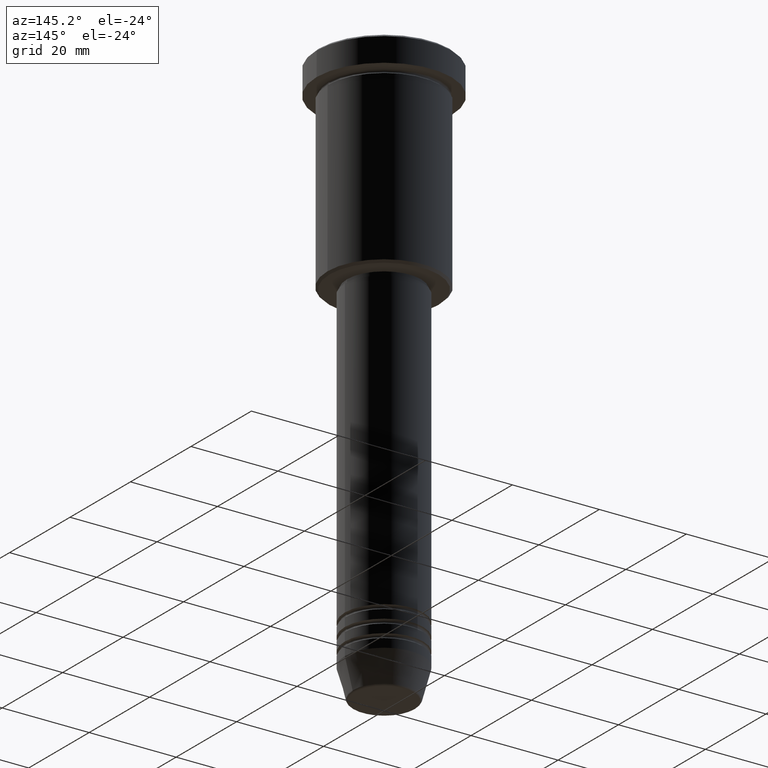
[diagram: clean part render]
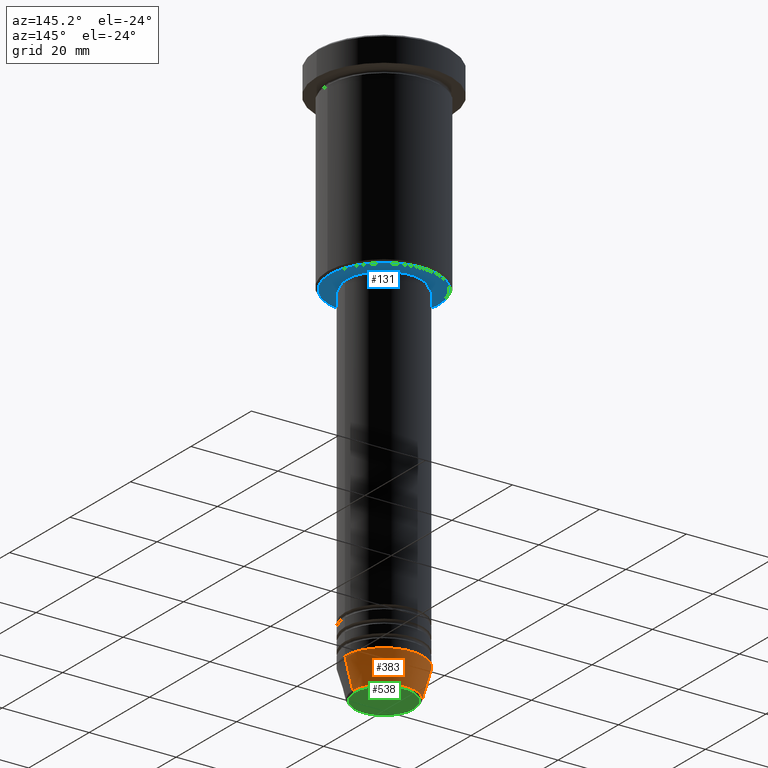
[diagram: same view with three faces highlighted in distinct colors, each labeled with its STEP entity id]
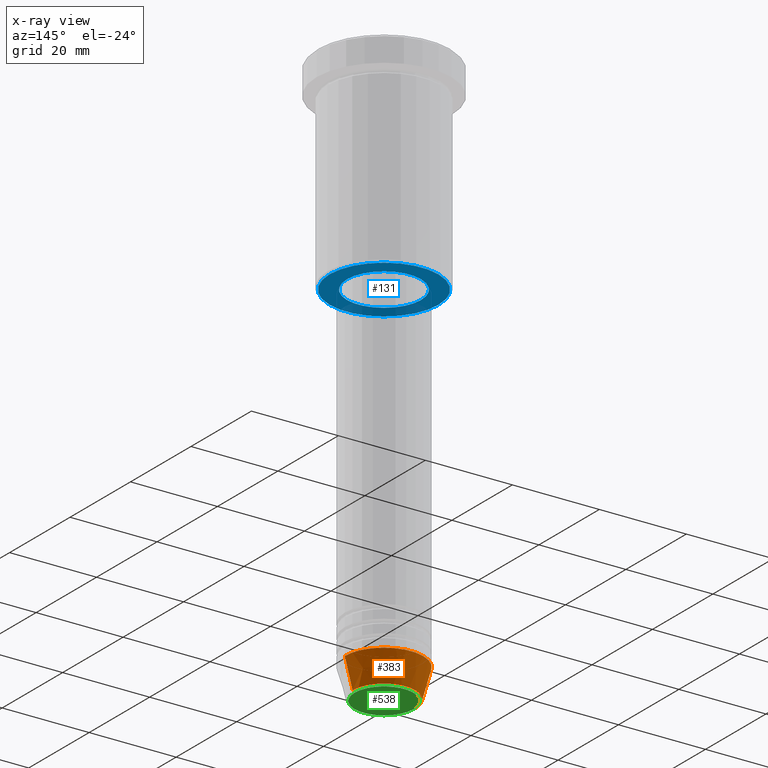
[diagram: x-ray of the same camera — body ghosted, the three highlighted faces saturated]
A machine part, auxiliary view with three faces highlighted in distinct colors.
The next image is the same camera in x-ray (body ghosted, the three faces saturated) — at least one of them is partly hidden behind the body in this view.
Their STEP definitions:

[orange] entity #383 — the highlighted conical surface has half-angle 15 deg.
#5 = CARTESIAN_POINT ( 'NONE',  ( 0.000000000000000000, 0.000000000000000000, -124.0000000000000000 ) ) ;
#12 = AXIS2_PLACEMENT_3D ( 'NONE', #462, #376, #385 ) ;
#13 = DIRECTION ( 'NONE',  ( -0.000000000000000000, -0.000000000000000000, 1.000000000000000000 ) ) ;
#44 = EDGE_CURVE ( 'NONE', #1053, #357, #639, .T. ) ;
#49 = VECTOR ( 'NONE', #1179, 1000.000000000000000 ) ;
#201 = DIRECTION ( 'NONE',  ( 1.000000000000000000, 0.000000000000000000, 0.000000000000000000 ) ) ;
#221 = AXIS2_PLACEMENT_3D ( 'NONE', #5, #574, #201 ) ;
#230 = ORIENTED_EDGE ( 'NONE', *, *, #444, .T. ) ;
#293 = ORIENTED_EDGE ( 'NONE', *, *, #44, .F. ) ;
#297 = CARTESIAN_POINT ( 'NONE',  ( 0.000000000000000000, 0.000000000000000000, -124.0000000000000000 ) ) ;
#332 = EDGE_CURVE ( 'NONE', #856, #1042, #445, .T. ) ;
#357 = VERTEX_POINT ( 'NONE', #390 ) ;
#368 = EDGE_LOOP ( 'NONE', ( #230, #789, #728, #293 ) ) ;
#376 = DIRECTION ( 'NONE',  ( -0.000000000000000000, -0.000000000000000000, 1.000000000000000000 ) ) ;
#383 = ADVANCED_FACE ( 'NONE', ( #476 ), #427, .T. ) ;
#385 = DIRECTION ( 'NONE',  ( 1.000000000000000000, 0.000000000000000000, 0.000000000000000000 ) ) ;
#389 = EDGE_CURVE ( 'NONE', #357, #1042, #1052, .T. ) ;
#390 = CARTESIAN_POINT ( 'NONE',  ( 9.000000000000000000, 0.000000000000000000, -124.0000000000000000 ) ) ;
#427 = CONICAL_SURFACE ( 'NONE', #221, 9.000000000000000000, 0.2617993877991500740 ) ;
#444 = EDGE_CURVE ( 'NONE', #1053, #856, #1097, .T. ) ;
#445 = LINE ( 'NONE', #814, #949 ) ;
#447 = CARTESIAN_POINT ( 'NONE',  ( 9.000000000000000000, 0.000000000000000000, -124.0000000000000000 ) ) ;
#462 = CARTESIAN_POINT ( 'NONE',  ( 0.000000000000000000, 0.000000000000000000, -130.6294095225512706 ) ) ;
#471 = DIRECTION ( 'NONE',  ( -0.2588190451025213501, 3.169619151431772337E-17, 0.9659258262890680902 ) ) ;
#476 = FACE_OUTER_BOUND ( 'NONE', #368, .T. ) ;
#481 = DIRECTION ( 'NONE',  ( 1.000000000000000000, 0.000000000000000000, 0.000000000000000000 ) ) ;
#489 = CARTESIAN_POINT ( 'NONE',  ( -9.000000000000000000, 1.102182119232617714E-15, -124.0000000000000000 ) ) ;
#574 = DIRECTION ( 'NONE',  ( -0.000000000000000000, -0.000000000000000000, 1.000000000000000000 ) ) ;
#639 = LINE ( 'NONE', #447, #49 ) ;
#728 = ORIENTED_EDGE ( 'NONE', *, *, #389, .F. ) ;
#754 = CARTESIAN_POINT ( 'NONE',  ( -7.223655072137189492, 9.934123627281765110E-16, -130.6294095225512706 ) ) ;
#789 = ORIENTED_EDGE ( 'NONE', *, *, #332, .T. ) ;
#814 = CARTESIAN_POINT ( 'NONE',  ( -9.000000000000000000, 1.102182119232617714E-15, -124.0000000000000000 ) ) ;
#856 = VERTEX_POINT ( 'NONE', #754 ) ;
#866 = CARTESIAN_POINT ( 'NONE',  ( 7.223655072137188604, 0.000000000000000000, -130.6294095225512706 ) ) ;
#949 = VECTOR ( 'NONE', #471, 1000.000000000000000 ) ;
#1042 = VERTEX_POINT ( 'NONE', #489 ) ;
#1052 = CIRCLE ( 'NONE', #1133, 9.000000000000000000 ) ;
#1053 = VERTEX_POINT ( 'NONE', #866 ) ;
#1097 = CIRCLE ( 'NONE', #12, 7.223655072137188604 ) ;
#1133 = AXIS2_PLACEMENT_3D ( 'NONE', #297, #13, #481 ) ;
#1179 = DIRECTION ( 'NONE',  ( 0.2588190451025213501, 0.000000000000000000, 0.9659258262890680902 ) ) ;

[blue] entity #131 — the highlighted planar face has unit normal (0, 0, -1).
#20 = ORIENTED_EDGE ( 'NONE', *, *, #498, .T. ) ;
#27 = VERTEX_POINT ( 'NONE', #921 ) ;
#54 = FACE_OUTER_BOUND ( 'NONE', #202, .T. ) ;
#56 = DIRECTION ( 'NONE',  ( 1.000000000000000000, 0.000000000000000000, 0.000000000000000000 ) ) ;
#130 = CIRCLE ( 'NONE', #322, 12.49999999999998401 ) ;
#131 = ADVANCED_FACE ( 'NONE', ( #54, #336 ), #938, .T. ) ;
#142 = CIRCLE ( 'NONE', #890, 8.499999999999998224 ) ;
#146 = CARTESIAN_POINT ( 'NONE',  ( 0.000000000000000000, 0.000000000000000000, -45.99999999999998579 ) ) ;
#151 = ORIENTED_EDGE ( 'NONE', *, *, #1041, .T. ) ;
#202 = EDGE_LOOP ( 'NONE', ( #151, #815 ) ) ;
#215 = DIRECTION ( 'NONE',  ( 0.000000000000000000, 0.000000000000000000, -1.000000000000000000 ) ) ;
#242 = VERTEX_POINT ( 'NONE', #255 ) ;
#255 = CARTESIAN_POINT ( 'NONE',  ( 12.49999999999998401, 0.000000000000000000, -45.99999999999998579 ) ) ;
#322 = AXIS2_PLACEMENT_3D ( 'NONE', #620, #912, #451 ) ;
#329 = DIRECTION ( 'NONE',  ( -1.000000000000000000, 0.000000000000000000, 0.000000000000000000 ) ) ;
#336 = FACE_BOUND ( 'NONE', #879, .T. ) ;
#398 = CARTESIAN_POINT ( 'NONE',  ( 8.499999999999998224, 0.000000000000000000, -45.99999999999998579 ) ) ;
#428 = DIRECTION ( 'NONE',  ( -1.000000000000000000, 0.000000000000000000, -0.000000000000000000 ) ) ;
#451 = DIRECTION ( 'NONE',  ( -1.000000000000000000, 0.000000000000000000, 0.000000000000000000 ) ) ;
#480 = CARTESIAN_POINT ( 'NONE',  ( 0.000000000000000000, 0.000000000000000000, -45.99999999999998579 ) ) ;
#498 = EDGE_CURVE ( 'NONE', #831, #676, #142, .T. ) ;
#620 = CARTESIAN_POINT ( 'NONE',  ( 0.000000000000000000, 0.000000000000000000, -45.99999999999998579 ) ) ;
#624 = CIRCLE ( 'NONE', #1038, 8.499999999999998224 ) ;
#676 = VERTEX_POINT ( 'NONE', #806 ) ;
#685 = CIRCLE ( 'NONE', #778, 12.49999999999998401 ) ;
#689 = DIRECTION ( 'NONE',  ( 0.000000000000000000, 0.000000000000000000, -1.000000000000000000 ) ) ;
#769 = CARTESIAN_POINT ( 'NONE',  ( 0.000000000000000000, 0.000000000000000000, -45.99999999999998579 ) ) ;
#778 = AXIS2_PLACEMENT_3D ( 'NONE', #146, #689, #329 ) ;
#784 = EDGE_CURVE ( 'NONE', #27, #242, #130, .T. ) ;
#806 = CARTESIAN_POINT ( 'NONE',  ( -8.499999999999998224, 1.040949779275249943E-15, -45.99999999999998579 ) ) ;
#815 = ORIENTED_EDGE ( 'NONE', *, *, #784, .T. ) ;
#831 = VERTEX_POINT ( 'NONE', #398 ) ;
#847 = DIRECTION ( 'NONE',  ( -0.000000000000000000, -0.000000000000000000, 1.000000000000000000 ) ) ;
#879 = EDGE_LOOP ( 'NONE', ( #20, #884 ) ) ;
#884 = ORIENTED_EDGE ( 'NONE', *, *, #887, .T. ) ;
#887 = EDGE_CURVE ( 'NONE', #676, #831, #624, .T. ) ;
#890 = AXIS2_PLACEMENT_3D ( 'NONE', #769, #954, #56 ) ;
#912 = DIRECTION ( 'NONE',  ( 0.000000000000000000, 0.000000000000000000, -1.000000000000000000 ) ) ;
#921 = CARTESIAN_POINT ( 'NONE',  ( -12.49999999999998401, 1.561424668912874125E-15, -45.99999999999998579 ) ) ;
#938 = PLANE ( 'NONE',  #1114 ) ;
#939 = DIRECTION ( 'NONE',  ( 1.000000000000000000, 0.000000000000000000, 0.000000000000000000 ) ) ;
#954 = DIRECTION ( 'NONE',  ( -0.000000000000000000, -0.000000000000000000, 1.000000000000000000 ) ) ;
#1029 = CARTESIAN_POINT ( 'NONE',  ( 0.000000000000000000, 13.00000000000000000, -45.99999999999998579 ) ) ;
#1038 = AXIS2_PLACEMENT_3D ( 'NONE', #480, #847, #939 ) ;
#1041 = EDGE_CURVE ( 'NONE', #242, #27, #685, .T. ) ;
#1114 = AXIS2_PLACEMENT_3D ( 'NONE', #1029, #215, #428 ) ;

[green] entity #538 — the highlighted planar face has unit normal (0, -0, 1).
#25 = CARTESIAN_POINT ( 'NONE',  ( 0.000000000000000000, 0.000000000000000000, -131.0000000000000000 ) ) ;
#52 = DIRECTION ( 'NONE',  ( 0.000000000000000000, -0.000000000000000000, 1.000000000000000000 ) ) ;
#108 = CIRCLE ( 'NONE', #644, 6.740692158992653837 ) ;
#109 = DIRECTION ( 'NONE',  ( 1.000000000000000000, 0.000000000000000000, 0.000000000000000000 ) ) ;
#134 = VERTEX_POINT ( 'NONE', #886 ) ;
#158 = DIRECTION ( 'NONE',  ( 1.000000000000000000, 0.000000000000000000, 0.000000000000000000 ) ) ;
#193 = VERTEX_POINT ( 'NONE', #241 ) ;
#241 = CARTESIAN_POINT ( 'NONE',  ( 6.740692158992653837, 0.000000000000000000, -131.0000000000000000 ) ) ;
#411 = PLANE ( 'NONE',  #1134 ) ;
#415 = DIRECTION ( 'NONE',  ( 1.000000000000000000, 0.000000000000000000, 0.000000000000000000 ) ) ;
#467 = EDGE_CURVE ( 'NONE', #193, #134, #108, .T. ) ;
#502 = CIRCLE ( 'NONE', #762, 6.740692158992653837 ) ;
#538 = ADVANCED_FACE ( 'NONE', ( #596 ), #411, .F. ) ;
#596 = FACE_OUTER_BOUND ( 'NONE', #741, .T. ) ;
#634 = ORIENTED_EDGE ( 'NONE', *, *, #467, .T. ) ;
#644 = AXIS2_PLACEMENT_3D ( 'NONE', #25, #746, #109 ) ;
#741 = EDGE_LOOP ( 'NONE', ( #634, #1176 ) ) ;
#746 = DIRECTION ( 'NONE',  ( 0.000000000000000000, 0.000000000000000000, -1.000000000000000000 ) ) ;
#762 = AXIS2_PLACEMENT_3D ( 'NONE', #996, #975, #158 ) ;
#801 = EDGE_CURVE ( 'NONE', #134, #193, #502, .T. ) ;
#886 = CARTESIAN_POINT ( 'NONE',  ( -6.740692158992653837, 8.550696569392679765E-16, -131.0000000000000000 ) ) ;
#975 = DIRECTION ( 'NONE',  ( 0.000000000000000000, 0.000000000000000000, -1.000000000000000000 ) ) ;
#996 = CARTESIAN_POINT ( 'NONE',  ( 0.000000000000000000, 0.000000000000000000, -131.0000000000000000 ) ) ;
#1134 = AXIS2_PLACEMENT_3D ( 'NONE', #1144, #52, #415 ) ;
#1144 = CARTESIAN_POINT ( 'NONE',  ( 0.000000000000000000, 0.000000000000000000, -131.0000000000000000 ) ) ;
#1176 = ORIENTED_EDGE ( 'NONE', *, *, #801, .T. ) ;